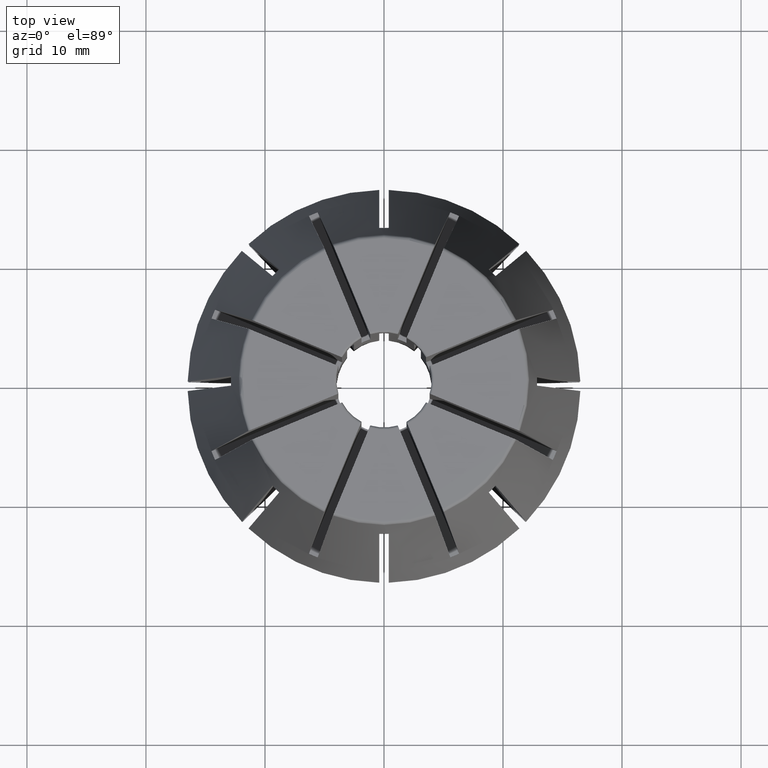
[diagram: clean part render]
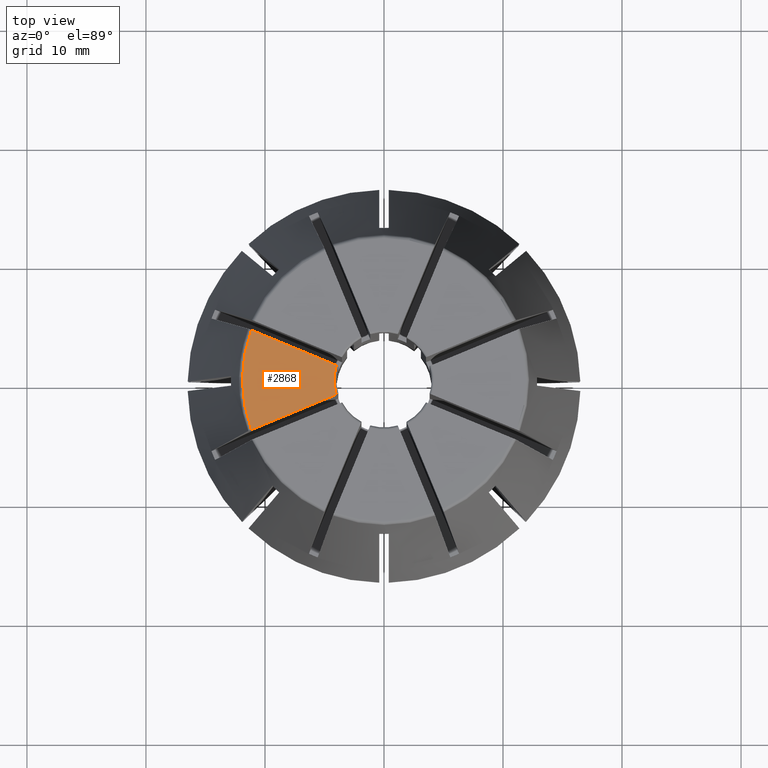
[diagram: same view with one face highlighted and labeled with its STEP entity id]
A machine part, top view. The second image highlights one B-rep face of the part: STEP entity #2868.
In plain terms, the highlighted planar face has unit normal (0, 0, 1).
Its self-contained STEP definition (entity closure, byte-faithful):
#359=LINE('',#5191,#519);
#360=LINE('',#5195,#520);
#519=VECTOR('',#3858,1000.);
#520=VECTOR('',#3861,1000.);
#1050=ORIENTED_EDGE('',*,*,#1830,.F.);
#1051=ORIENTED_EDGE('',*,*,#1831,.T.);
#1052=ORIENTED_EDGE('',*,*,#1832,.F.);
#1053=ORIENTED_EDGE('',*,*,#1637,.F.);
#1637=EDGE_CURVE('',#2077,#2079,#2245,.T.);
#1830=EDGE_CURVE('',#2191,#2077,#359,.T.);
#1831=EDGE_CURVE('',#2191,#2192,#2347,.T.);
#1832=EDGE_CURVE('',#2079,#2192,#360,.T.);
#2077=VERTEX_POINT('',#4678);
#2079=VERTEX_POINT('',#4681);
#2191=VERTEX_POINT('',#5192);
#2192=VERTEX_POINT('',#5194);
#2245=CIRCLE('',#2999,4.2);
#2347=CIRCLE('',#3169,11.8965021863512);
#2476=EDGE_LOOP('',(#1050,#1051,#1052,#1053));
#2632=FACE_BOUND('',#2476,.T.);
#2748=PLANE('',#3168);
#2868=ADVANCED_FACE('',(#2632),#2748,.T.);
#2999=AXIS2_PLACEMENT_3D('',#4680,#3468,#3469);
#3168=AXIS2_PLACEMENT_3D('',#5190,#3856,#3857);
#3169=AXIS2_PLACEMENT_3D('',#5193,#3859,#3860);
#3468=DIRECTION('',(0.,0.,1.));
#3469=DIRECTION('',(1.,0.,0.));
#3856=DIRECTION('',(0.,0.,1.));
#3857=DIRECTION('',(1.,0.,0.));
#3858=DIRECTION('',(0.923879532511287,-0.38268343236509,0.));
#3859=DIRECTION('',(0.,0.,1.));
#3860=DIRECTION('',(1.,0.,0.));
#3861=DIRECTION('',(-0.923879532511287,-0.38268343236509,0.));
#4678=CARTESIAN_POINT('',(-4.01572961801502,1.23041279048819,30.9));
#4680=CARTESIAN_POINT('',(0.,0.,30.9));
#4681=CARTESIAN_POINT('',(-4.01572961801511,-1.23041279048823,30.9));
#5190=CARTESIAN_POINT('',(0.,0.,30.9));
#5191=CARTESIAN_POINT('',(-0.153073372946036,-0.369551813004515,30.9));
#5192=CARTESIAN_POINT('',(-11.1377937134799,4.18046833092021,30.9));
#5193=CARTESIAN_POINT('',(0.,0.,30.9));
#5194=CARTESIAN_POINT('',(-11.1377937134799,-4.18046833092021,30.9));
#5195=CARTESIAN_POINT('',(-0.153073372946036,0.369551813004515,30.9));